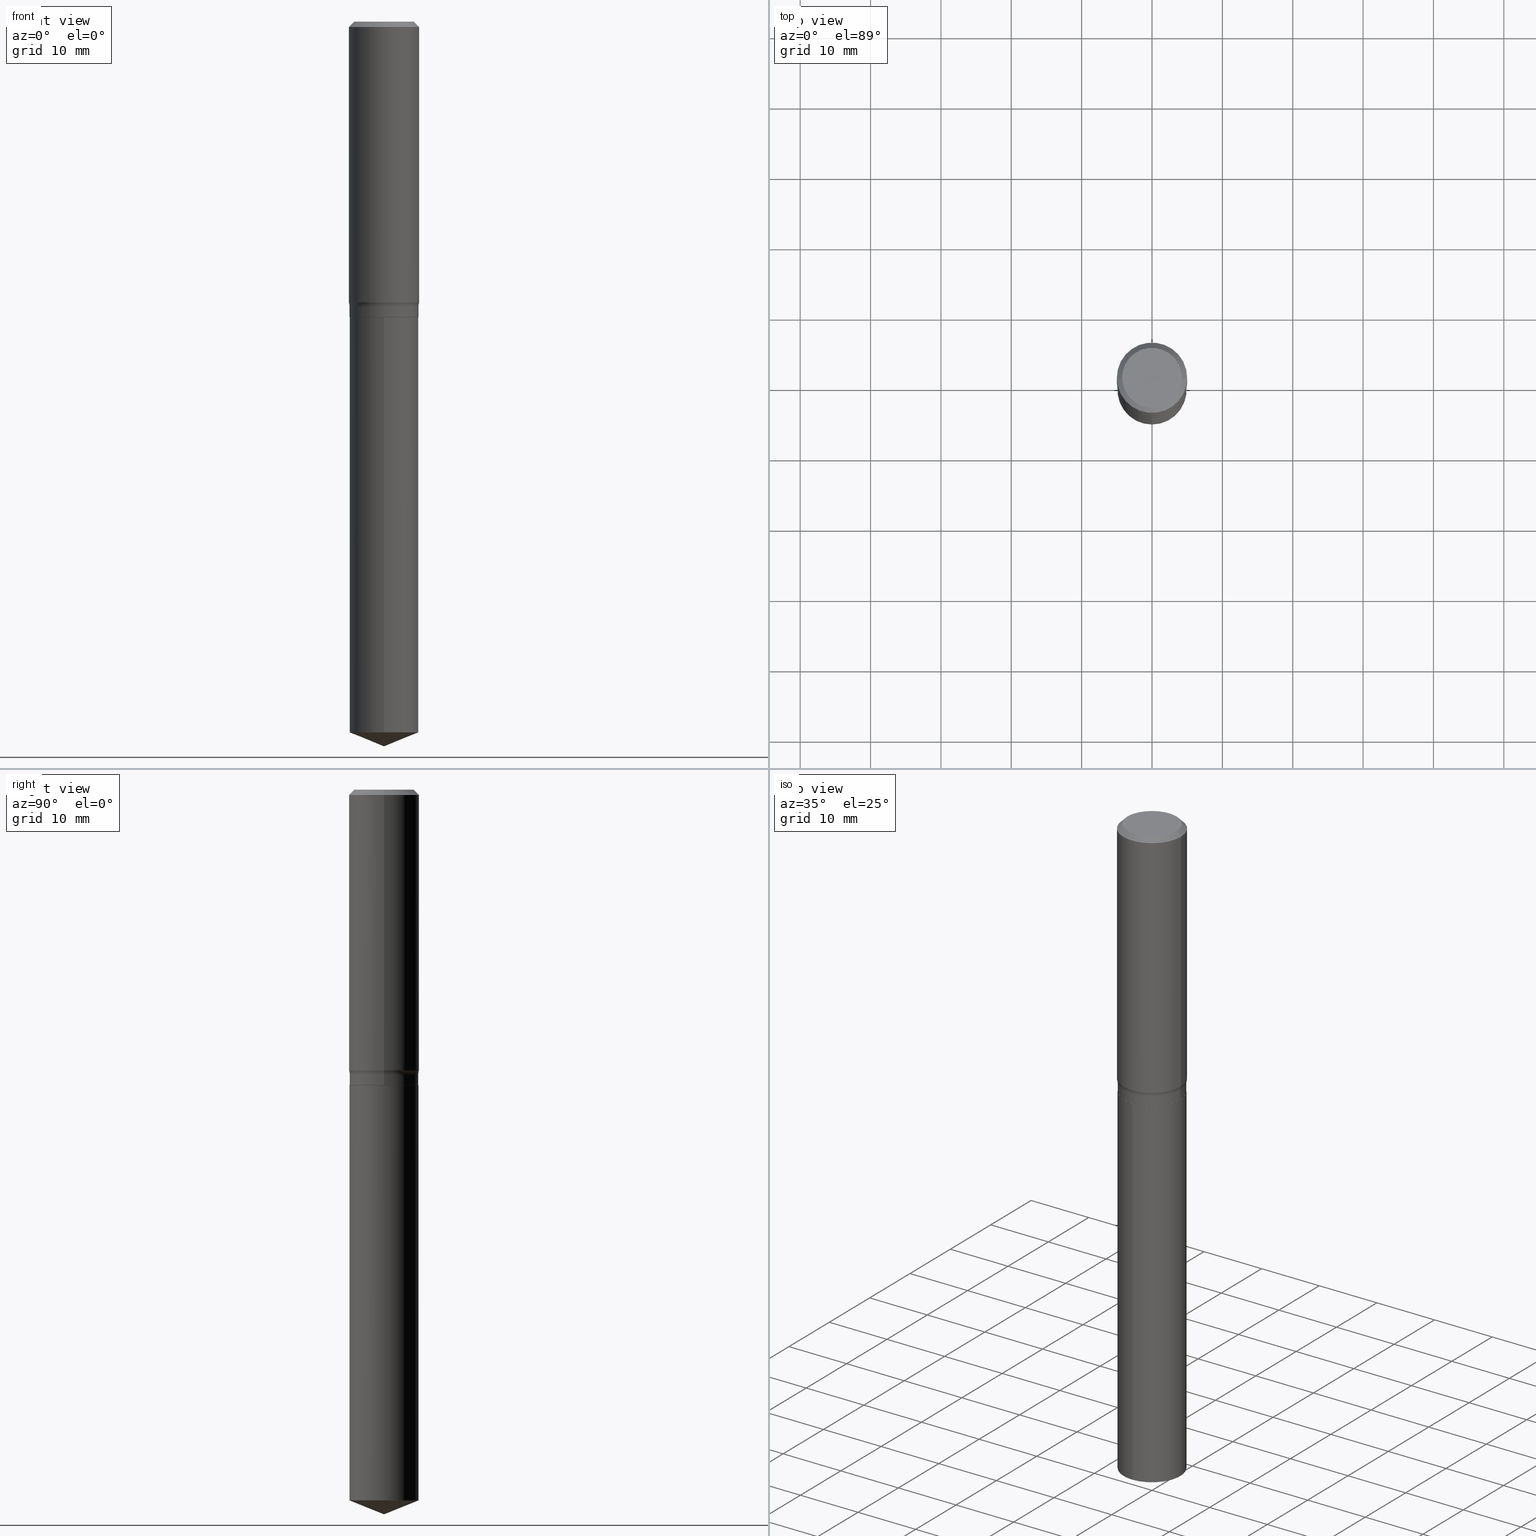
[diagram: canonical four-view strip — front | top / right | iso, engineering-drawing reading convention]
A machine part, canonical four-view strip (front | top / right | iso — engineering-drawing reading convention). The complete STEP part file that produces these views, byte-faithful:
ISO-10303-21;
HEADER;
FILE_DESCRIPTION (( 'STEP AP203' ),
    '1' );
FILE_NAME ('69291.STEP',
    '2024-04-19T17:41:43',
    ( '' ),
    ( '' ),
    'SwSTEP 2.0',
    'SolidWorks 2023',
    '' );
FILE_SCHEMA (( 'CONFIG_CONTROL_DESIGN' ));
ENDSEC;

DATA;
#1 = ORIENTED_EDGE ( 'NONE', *, *, #66, .T. ) ;
#2 = DIRECTION ( 'NONE',  ( -6.982962677686265133E-15, -1.000000000000000000, 2.832398127179122126E-15 ) ) ;
#3 = VERTEX_POINT ( 'NONE', #16 ) ;
#4 = DIRECTION ( 'NONE',  ( -2.445468806185136597E-29, 3.491481338843145583E-15, 1.000000000000000000 ) ) ;
#5 = CIRCLE ( 'NONE', #275, 0.1928999999999999881 ) ;
#6 = LOCAL_TIME ( 13, 41, 43.00000000000000000, #404 ) ;
#7 = EDGE_CURVE ( 'NONE', #482, #385, #347, .T. ) ;
#8 = CLOSED_SHELL ( 'NONE', ( #464, #405, #138, #387, #133 ) ) ;
#9 = CARTESIAN_POINT ( 'NONE',  ( -0.1928999999999999881, -4.299528757000033862E-15, -1.652899999999999814 ) ) ;
#10 = CARTESIAN_POINT ( 'NONE',  ( 0.000000000000000000, 0.000000000000000000, 0.000000000000000000 ) ) ;
#11 = TOROIDAL_SURFACE ( 'NONE', #474, 0.2708999999999999742, 0.07799999999999997213 ) ;
#12 = CARTESIAN_POINT ( 'NONE',  ( 3.840835966638190435E-29, -5.483695833354082254E-15, -1.570592909189378661 ) ) ;
#13 = DIRECTION ( 'NONE',  ( -2.445507172700810819E-29, 3.491426395809013811E-15, 1.000000000000000000 ) ) ;
#14 =( NAMED_UNIT ( * ) PLANE_ANGLE_UNIT ( ) SI_UNIT ( $, .RADIAN. ) );
#15 = CARTESIAN_POINT ( 'NONE',  ( 0.2708999999999999742, -7.460946472973909886E-15, -1.595099999999999518 ) ) ;
#16 = CARTESIAN_POINT ( 'NONE',  ( 0.1923999999999999877, -7.116337264830093249E-15, -1.653399999999999981 ) ) ;
#17 =( CONVERSION_BASED_UNIT ( 'INCH', #289 ) LENGTH_UNIT ( ) NAMED_UNIT ( #42 ) );
#18 = DIRECTION ( 'NONE',  ( -2.445468806185136597E-29, 3.491481338843145583E-15, 1.000000000000000000 ) ) ;
#19 = ADVANCED_FACE ( 'NONE', ( #243 ), #393, .T. ) ;
#20 = DIRECTION ( 'NONE',  ( 0.7071067811865453523, -7.319954787623248157E-15, -0.7071067811865496822 ) ) ;
#21 = CYLINDRICAL_SURFACE ( 'NONE', #329, 0.1928999999999999881 ) ;
#22 = CC_DESIGN_PERSON_AND_ORGANIZATION_ASSIGNMENT ( #338, #102, ( #348 ) ) ;
#23 = CARTESIAN_POINT ( 'NONE',  ( 4.043338124146503856E-29, -5.772815245643255193E-15, -1.653399999999999537 ) ) ;
#24 = CALENDAR_DATE ( 2024, 19, 4 ) ;
#25 = CARTESIAN_POINT ( 'NONE',  ( -5.008488096090108951E-47, 7.150793614331948590E-33, 2.048068690724054183E-18 ) ) ;
#26 = EDGE_LOOP ( 'NONE', ( #63, #369, #427, #101 ) ) ;
#27 = ORIENTED_EDGE ( 'NONE', *, *, #228, .F. ) ;
#28 = CARTESIAN_POINT ( 'NONE',  ( 3.900767292745910558E-29, -5.569261883588700777E-15, -1.595099999999999518 ) ) ;
#29 = CONICAL_SURFACE ( 'NONE', #379, 97.44436430772951496, 1.186823891356148852 ) ;
#30 = APPROVAL_DATE_TIME ( #413, #451 ) ;
#31 = CIRCLE ( 'NONE', #91, 0.1928999999999999881 ) ;
#32 = ORIENTED_EDGE ( 'NONE', *, *, #7, .T. ) ;
#33 = CARTESIAN_POINT ( 'NONE',  ( 7.220858017463212989E-31, -1.030947152326917102E-16, -0.02952750000000020636 ) ) ;
#34 = ORIENTED_EDGE ( 'NONE', *, *, #437, .T. ) ;
#35 = CYLINDRICAL_SURFACE ( 'NONE', #210, 0.1928999999999999881 ) ;
#36 = EDGE_LOOP ( 'NONE', ( #371, #339 ) ) ;
#37 = CC_DESIGN_APPROVAL ( #223, ( #74 ) ) ;
#38 = ORIENTED_EDGE ( 'NONE', *, *, #279, .F. ) ;
#39 = ADVANCED_FACE ( 'NONE', ( #208 ), #331, .F. ) ;
#40 = CARTESIAN_POINT ( 'NONE',  ( 4.043338124146504977E-29, -5.772815245643255982E-15, -1.653399999999999981 ) ) ;
#41 = AXIS2_PLACEMENT_3D ( 'NONE', #189, #457, #104 ) ;
#42 = DIMENSIONAL_EXPONENTS ( 1.000000000000000000, 0.000000000000000000, 0.000000000000000000, 0.000000000000000000, 0.000000000000000000, 0.000000000000000000, 0.000000000000000000 ) ;
#43 = CARTESIAN_POINT ( 'NONE',  ( -8.636334179874603903E-28, 1.232999072406469164E-13, 35.31507874015748172 ) ) ;
#44 = CARTESIAN_POINT ( 'NONE',  ( -8.636334179874603903E-28, 1.232999072406469164E-13, 35.31507874015748172 ) ) ;
#45 = CARTESIAN_POINT ( 'NONE',  ( 0.000000000000000000, 0.000000000000000000, 0.000000000000000000 ) ) ;
#46 = ORIENTED_EDGE ( 'NONE', *, *, #48, .F. ) ;
#47 = PRODUCT_DEFINITION_SHAPE ( 'NONE', 'NONE',  #360 ) ;
#48 = EDGE_CURVE ( 'NONE', #396, #330, #312, .T. ) ;
#49 = DIRECTION ( 'NONE',  ( -2.445507172700810819E-29, 3.491426395809013417E-15, 1.000000000000000000 ) ) ;
#50 = ORIENTED_EDGE ( 'NONE', *, *, #425, .T. ) ;
#51 = CARTESIAN_POINT ( 'NONE',  ( -0.1968500000000000250, 1.271501487869850120E-15, -0.02952750000000020636 ) ) ;
#52 = APPROVAL ( #313, 'UNSPECIFIED' ) ;
#53 = CARTESIAN_POINT ( 'NONE',  ( -0.1968500000000001082, 1.398703375343757985E-15, -9.682923725166787881E-30 ) ) ;
#54 = CARTESIAN_POINT ( 'NONE',  ( -1.347013500525640042E-15, -0.1929000000000057335, -1.653399999999999093 ) ) ;
#55 = APPLICATION_PROTOCOL_DEFINITION ( 'international standard', 'config_control_design', 1994, #202 ) ;
#56 = CARTESIAN_POINT ( 'NONE',  ( 1.370636937281330599E-15, 0.1928999999999942150, -1.653400000000000203 ) ) ;
#57 = EDGE_CURVE ( 'NONE', #468, #224, #438, .T. ) ;
#58 = DIRECTION ( 'NONE',  ( -0.7071067811865453523, 2.468850131082234184E-15, -0.7071067811865496822 ) ) ;
#59 = AXIS2_PLACEMENT_3D ( 'NONE', #43, #280, #435 ) ;
#60 = FACE_OUTER_BOUND ( 'NONE', #489, .T. ) ;
#61 = ORIENTED_EDGE ( 'NONE', *, *, #112, .T. ) ;
#62 = EDGE_LOOP ( 'NONE', ( #332, #1, #34, #157 ) ) ;
#63 = ORIENTED_EDGE ( 'NONE', *, *, #206, .T. ) ;
#64 = CIRCLE ( 'NONE', #121, 0.1673224999999999851 ) ;
#65 = APPROVAL_PERSON_ORGANIZATION ( #300, #451, #460 ) ;
#66 = EDGE_CURVE ( 'NONE', #184, #143, #309, .T. ) ;
#67 = CIRCLE ( 'NONE', #318, 0.07799999999999995826 ) ;
#68 = ORIENTED_EDGE ( 'NONE', *, *, #151, .T. ) ;
#69 = CC_DESIGN_PERSON_AND_ORGANIZATION_ASSIGNMENT ( #398, #247, ( #117 ) ) ;
#70 = ORIENTED_EDGE ( 'NONE', *, *, #72, .T. ) ;
#71 = ORIENTED_EDGE ( 'NONE', *, *, #265, .T. ) ;
#72 = EDGE_CURVE ( 'NONE', #400, #325, #416, .T. ) ;
#73 = CARTESIAN_POINT ( 'NONE',  ( -0.1968500000000000250, -1.394691898949628788E-15, -0.02952750000000020636 ) ) ;
#74 = PRODUCT_DEFINITION_FORMATION_WITH_SPECIFIED_SOURCE ( 'ANY', '', #117, .NOT_KNOWN. ) ;
#75 = FACE_OUTER_BOUND ( 'NONE', #442, .T. ) ;
#76 = FACE_OUTER_BOUND ( 'NONE', #403, .T. ) ;
#77 = DIRECTION ( 'NONE',  ( 1.000000000000000000, -6.982962677686269077E-15, 0.000000000000000000 ) ) ;
#78 = LINE ( 'NONE', #53, #197 ) ;
#79 = CARTESIAN_POINT ( 'NONE',  ( 0.1928999999999999881, -1.347013500525680866E-15, 9.406145000510359203E-30 ) ) ;
#80 = AXIS2_PLACEMENT_3D ( 'NONE', #40, #4, #266 ) ;
#81 = DIRECTION ( 'NONE',  ( 1.000000000000000000, -6.982962677686266711E-15, 4.876176775795935793E-29 ) ) ;
#82 = AXIS2_PLACEMENT_3D ( 'NONE', #164, #354, #282 ) ;
#83 = DATE_AND_TIME ( #439, #285 ) ;
#84 = CARTESIAN_POINT ( 'NONE',  ( 4.043338124146504977E-29, -5.772815245643255982E-15, -1.653399999999999981 ) ) ;
#85 = DIRECTION ( 'NONE',  ( -2.445468806185136597E-29, 3.491481338843145583E-15, 1.000000000000000000 ) ) ;
#86 = LINE ( 'NONE', #350, #107 ) ;
#87 = DIRECTION ( 'NONE',  ( -2.445507172700810819E-29, 3.491426395809013811E-15, 1.000000000000000000 ) ) ;
#88 = DIRECTION ( 'NONE',  ( 2.445468806185136597E-29, -3.491481338843145583E-15, -1.000000000000000000 ) ) ;
#89 = CIRCLE ( 'NONE', #454, 0.1968500000000001915 ) ;
#90 = COORDINATED_UNIVERSAL_TIME_OFFSET ( 5, 0, .BEHIND. ) ;
#91 = AXIS2_PLACEMENT_3D ( 'NONE', #28, #327, #137 ) ;
#92 = EDGE_LOOP ( 'NONE', ( #182, #283, #412 ) ) ;
#93 = DIRECTION ( 'NONE',  ( -2.445468806185136877E-29, 3.491481338843145188E-15, 1.000000000000000000 ) ) ;
#94 =( LENGTH_UNIT ( ) NAMED_UNIT ( * ) SI_UNIT ( $, .METRE. ) );
#95 = CARTESIAN_POINT ( 'NONE',  ( 7.220858017463212989E-31, -1.030947152326917102E-16, -0.02952750000000020636 ) ) ;
#96 = ORIENTED_EDGE ( 'NONE', *, *, #7, .F. ) ;
#97 = APPROVAL_STATUS ( 'not_yet_approved' ) ;
#98 = VERTEX_POINT ( 'NONE', #54 ) ;
#99 = VECTOR ( 'NONE', #58, 39.37007874015748143 ) ;
#100 = LOCAL_TIME ( 13, 41, 43.00000000000000000, #90 ) ;
#101 = ORIENTED_EDGE ( 'NONE', *, *, #179, .F. ) ;
#102 = PERSON_AND_ORGANIZATION_ROLE ( 'classification_officer' ) ;
#103 = ADVANCED_FACE ( 'NONE', ( #119 ), #11, .F. ) ;
#104 = DIRECTION ( 'NONE',  ( 1.000000000000000000, -6.982962677686267499E-15, 4.876176775795935793E-29 ) ) ;
#105 = ORIENTED_EDGE ( 'NONE', *, *, #305, .F. ) ;
#106 = ADVANCED_FACE ( 'NONE', ( #434 ), #342, .T. ) ;
#107 = VECTOR ( 'NONE', #211, 39.37007874015748143 ) ;
#108 = AXIS2_PLACEMENT_3D ( 'NONE', #167, #87, #471 ) ;
#109 = CYLINDRICAL_SURFACE ( 'NONE', #41, 0.1928999999999999881 ) ;
#110 = ADVANCED_FACE ( 'NONE', ( #205 ), #478, .T. ) ;
#111 = ADVANCED_BREP_SHAPE_REPRESENTATION ( '69291', ( #490, #320, #82 ), #475 ) ;
#112 = EDGE_CURVE ( 'NONE', #301, #144, #67, .T. ) ;
#113 = CIRCLE ( 'NONE', #368, 0.1968500000000000250 ) ;
#114 = CARTESIAN_POINT ( 'NONE',  ( 9.916532697805385385E-29, -1.415773403500555029E-14, -4.054999999999999716 ) ) ;
#115 = DIRECTION ( 'NONE',  ( -2.445468806185136597E-29, 3.491481338843145583E-15, 1.000000000000000000 ) ) ;
#116 = ORIENTED_EDGE ( 'NONE', *, *, #391, .T. ) ;
#117 = PRODUCT ( '69291', '69291', '', ( #321 ) ) ;
#118 = CARTESIAN_POINT ( 'NONE',  ( 7.220858017463212989E-31, -1.030947152326917102E-16, -0.02952750000000020636 ) ) ;
#119 = FACE_OUTER_BOUND ( 'NONE', #408, .T. ) ;
#120 = DIRECTION ( 'NONE',  ( -2.445507172700810819E-29, 3.491426395809013811E-15, 1.000000000000000000 ) ) ;
#121 = AXIS2_PLACEMENT_3D ( 'NONE', #472, #115, #433 ) ;
#122 = CARTESIAN_POINT ( 'NONE',  ( 4.042115389743411055E-29, -5.771069504973833690E-15, -1.652899999999999814 ) ) ;
#123 = CC_DESIGN_SECURITY_CLASSIFICATION ( #348, ( #74 ) ) ;
#124 = DIRECTION ( 'NONE',  ( -0.7071067811864267805, 7.493145998869918709E-15, 0.7071067811866682540 ) ) ;
#125 = DIRECTION ( 'NONE',  ( -6.982962677686265133E-15, -1.000000000000000000, 2.832398127179122126E-15 ) ) ;
#126 = DIRECTION ( 'NONE',  ( -2.445468806185136877E-29, 3.491481338843145188E-15, 1.000000000000000000 ) ) ;
#127 = CARTESIAN_POINT ( 'NONE',  ( -0.1923999999999999877, -4.405731022040823903E-15, -1.653399999999999981 ) ) ;
#128 = EDGE_LOOP ( 'NONE', ( #132, #299, #291, #68 ) ) ;
#129 = LOCAL_TIME ( 13, 41, 43.00000000000000000, #485 ) ;
#130 = CIRCLE ( 'NONE', #199, 0.1968500000000000250 ) ;
#131 = DIRECTION ( 'NONE',  ( -2.445468806185136597E-29, 3.491481338843145583E-15, 1.000000000000000000 ) ) ;
#132 = ORIENTED_EDGE ( 'NONE', *, *, #112, .F. ) ;
#133 = ADVANCED_FACE ( 'NONE', ( #359 ), #235, .F. ) ;
#134 = DIRECTION ( 'NONE',  ( -2.438088387897960049E-29, 3.491481338843145188E-15, 1.000000000000000000 ) ) ;
#135 = PERSON_AND_ORGANIZATION ( #153, #430 ) ;
#136 = ORIENTED_EDGE ( 'NONE', *, *, #425, .F. ) ;
#137 = DIRECTION ( 'NONE',  ( 1.000000000000000000, -6.982962677686269077E-15, 0.000000000000000000 ) ) ;
#138 = ADVANCED_FACE ( 'NONE', ( #383 ), #29, .T. ) ;
#139 = APPROVAL_DATE_TIME ( #488, #223 ) ;
#140 = PLANE ( 'NONE',  #267 ) ;
#141 = ORIENTED_EDGE ( 'NONE', *, *, #261, .F. ) ;
#142 = ADVANCED_FACE ( 'NONE', ( #428 ), #389, .F. ) ;
#143 = VERTEX_POINT ( 'NONE', #337 ) ;
#144 = VERTEX_POINT ( 'NONE', #173 ) ;
#145 = CALENDAR_DATE ( 2024, 19, 4 ) ;
#146 = CC_DESIGN_PERSON_AND_ORGANIZATION_ASSIGNMENT ( #135, #296, ( #74 ) ) ;
#147 = APPLICATION_CONTEXT ( 'configuration controlled 3d designs of mechanical parts and assemblies' ) ;
#148 = VECTOR ( 'NONE', #49, 39.37007874015748143 ) ;
#149 = VECTOR ( 'NONE', #308, 39.37007874015748854 ) ;
#150 = CIRCLE ( 'NONE', #432, 0.07799999999999995826 ) ;
#151 = EDGE_CURVE ( 'NONE', #330, #144, #31, .T. ) ;
#152 = CARTESIAN_POINT ( 'NONE',  ( 3.840835966638190435E-29, -5.483695833354082254E-15, -1.570592909189378661 ) ) ;
#153 = PERSON ( 'UNSPECIFIED', 'UNSPECIFIED', 'UNSPECIFIED', ('UNSPECIFIED'), ('UNSPECIFIED'), ('UNSPECIFIED') ) ;
#154 = AXIS2_PLACEMENT_3D ( 'NONE', #198, #194, #237 ) ;
#155 = CARTESIAN_POINT ( 'NONE',  ( 9.916404714907756114E-29, -1.415791572063081844E-14, -4.054999999999999716 ) ) ;
#156 = CIRCLE ( 'NONE', #349, 0.1923999999999999877 ) ;
#157 = ORIENTED_EDGE ( 'NONE', *, *, #57, .F. ) ;
#158 = DIRECTION ( 'NONE',  ( -2.445468806185136597E-29, 3.491481338843145583E-15, 1.000000000000000000 ) ) ;
#159 = DIRECTION ( 'NONE',  ( -6.474490251793188884E-15, -0.9271838545667878684, 0.3746065934159108490 ) ) ;
#160 = DIRECTION ( 'NONE',  ( 1.000000000000000000, -6.982962677686267499E-15, 4.876176775795935793E-29 ) ) ;
#161 = APPLICATION_PROTOCOL_DEFINITION ( 'international standard', 'config_control_design', 1994, #147 ) ;
#162 = CARTESIAN_POINT ( 'NONE',  ( 4.043338124146503856E-29, -5.772815245643255193E-15, -1.653399999999999537 ) ) ;
#163 = CARTESIAN_POINT ( 'NONE',  ( 0.1968500000000000250, -1.453583746094017706E-15, -0.02952750000000020636 ) ) ;
#164 = CARTESIAN_POINT ( 'NONE',  ( 0.000000000000000000, 0.000000000000000000, 0.000000000000000000 ) ) ;
#165 = CYLINDRICAL_SURFACE ( 'NONE', #219, 0.1968500000000001082 ) ;
#166 = CC_DESIGN_APPROVAL ( #451, ( #348 ) ) ;
#167 = CARTESIAN_POINT ( 'NONE',  ( 9.725873491592949030E-29, -1.388571476951150390E-14, -3.977063341036398914 ) ) ;
#168 = AXIS2_PLACEMENT_3D ( 'NONE', #23, #169, #233 ) ;
#169 = DIRECTION ( 'NONE',  ( 2.445507172700810538E-29, -3.491426395809013417E-15, -1.000000000000000000 ) ) ;
#170 = CARTESIAN_POINT ( 'NONE',  ( 9.916531585301787226E-29, -1.415773403500555029E-14, -4.054999999999999716 ) ) ;
#171 = DIRECTION ( 'NONE',  ( 2.438088387897960049E-29, -3.491481338843145188E-15, -1.000000000000000000 ) ) ;
#172 = ORIENTED_EDGE ( 'NONE', *, *, #310, .F. ) ;
#173 = CARTESIAN_POINT ( 'NONE',  ( -0.1928999999999999881, -4.299528757000033862E-15, -1.595099999999999518 ) ) ;
#174 = EDGE_CURVE ( 'NONE', #385, #144, #288, .T. ) ;
#175 = EDGE_LOOP ( 'NONE', ( #221, #322, #294, #38 ) ) ;
#176 = CARTESIAN_POINT ( 'NONE',  ( 0.1673224999999999851, -1.300749711163072397E-15, 4.096137381456741925E-18 ) ) ;
#177 = AXIS2_PLACEMENT_3D ( 'NONE', #355, #18, #77 ) ;
#178 = CIRCLE ( 'NONE', #287, 0.1968500000000001915 ) ;
#179 = EDGE_CURVE ( 'NONE', #363, #143, #295, .T. ) ;
#180 = DIRECTION ( 'NONE',  ( -2.445468806185136597E-29, 3.491481338843145583E-15, 1.000000000000000000 ) ) ;
#181 = ORIENTED_EDGE ( 'NONE', *, *, #272, .T. ) ;
#182 = ORIENTED_EDGE ( 'NONE', *, *, #418, .F. ) ;
#183 = CARTESIAN_POINT ( 'NONE',  ( 4.043338124146503856E-29, -5.772815245643255193E-15, -1.653399999999999537 ) ) ;
#184 = VERTEX_POINT ( 'NONE', #176 ) ;
#185 = APPROVAL_PERSON_ORGANIZATION ( #390, #223, #373 ) ;
#186 = CC_DESIGN_DATE_AND_TIME_ASSIGNMENT ( #83, #240, ( #360 ) ) ;
#187 = COORDINATED_UNIVERSAL_TIME_OFFSET ( 5, 0, .BEHIND. ) ;
#188 = ORIENTED_EDGE ( 'NONE', *, *, #231, .T. ) ;
#189 = CARTESIAN_POINT ( 'NONE',  ( 0.000000000000000000, 0.000000000000000000, 0.000000000000000000 ) ) ;
#190 = DIRECTION ( 'NONE',  ( 1.000000000000000000, -6.982962677686266711E-15, 0.000000000000000000 ) ) ;
#191 = CIRCLE ( 'NONE', #154, 0.1673224999999999851 ) ;
#192 = AXIS2_PLACEMENT_3D ( 'NONE', #10, #158, #278 ) ;
#193 = EDGE_CURVE ( 'NONE', #482, #3, #441, .T. ) ;
#194 = DIRECTION ( 'NONE',  ( -2.445468806185136597E-29, 3.491481338843145583E-15, 1.000000000000000000 ) ) ;
#195 = ORIENTED_EDGE ( 'NONE', *, *, #251, .T. ) ;
#196 = ORIENTED_EDGE ( 'NONE', *, *, #417, .F. ) ;
#197 = VECTOR ( 'NONE', #423, 39.37007874015748143 ) ;
#198 = CARTESIAN_POINT ( 'NONE',  ( -1.001697619218021790E-46, 1.430158722866389718E-32, 4.096137381448108366E-18 ) ) ;
#199 = AXIS2_PLACEMENT_3D ( 'NONE', #118, #358, #424 ) ;
#200 = DIRECTION ( 'NONE',  ( 1.000000000000000000, -6.982962677686265133E-15, 4.883557194083111780E-29 ) ) ;
#201 = CC_DESIGN_DATE_AND_TIME_ASSIGNMENT ( #366, #452, ( #348 ) ) ;
#202 = APPLICATION_CONTEXT ( 'configuration controlled 3d designs of mechanical parts and assemblies' ) ;
#203 = DIRECTION ( 'NONE',  ( -2.445507172700810819E-29, 3.491426395809013811E-15, 1.000000000000000000 ) ) ;
#204 = ORIENTED_EDGE ( 'NONE', *, *, #251, .F. ) ;
#205 = FACE_OUTER_BOUND ( 'NONE', #216, .T. ) ;
#206 = EDGE_CURVE ( 'NONE', #363, #301, #178, .T. ) ;
#207 = DIRECTION ( 'NONE',  ( -6.982962677686265133E-15, -1.000000000000000000, 2.832398127179122126E-15 ) ) ;
#208 = FACE_OUTER_BOUND ( 'NONE', #128, .T. ) ;
#209 = COORDINATED_UNIVERSAL_TIME_OFFSET ( 5, 0, .BEHIND. ) ;
#210 = AXIS2_PLACEMENT_3D ( 'NONE', #183, #259, #2 ) ;
#211 = DIRECTION ( 'NONE',  ( 0.7071067811864267805, -2.468850131080992517E-15, 0.7071067811866682540 ) ) ;
#212 = DIRECTION ( 'NONE',  ( -1.000000000000000000, 7.105427357601001859E-15, 0.000000000000000000 ) ) ;
#213 = PERSON_AND_ORGANIZATION ( #153, #430 ) ;
#214 = ORIENTED_EDGE ( 'NONE', *, *, #481, .T. ) ;
#215 = CARTESIAN_POINT ( 'NONE',  ( 9.725873491592949030E-29, -1.388571476951150390E-14, -3.977063341036398914 ) ) ;
#216 = EDGE_LOOP ( 'NONE', ( #376, #116, #401, #136 ) ) ;
#217 = DIRECTION ( 'NONE',  ( 1.000000000000000000, -6.982962677686265922E-15, 4.876176775795935793E-29 ) ) ;
#218 = ORIENTED_EDGE ( 'NONE', *, *, #261, .T. ) ;
#219 = AXIS2_PLACEMENT_3D ( 'NONE', #45, #467, #81 ) ;
#220 = CC_DESIGN_APPROVAL ( #52, ( #360 ) ) ;
#221 = ORIENTED_EDGE ( 'NONE', *, *, #378, .F. ) ;
#222 = ORIENTED_EDGE ( 'NONE', *, *, #72, .F. ) ;
#223 = APPROVAL ( #375, 'UNSPECIFIED' ) ;
#224 = VERTEX_POINT ( 'NONE', #73 ) ;
#225 = CARTESIAN_POINT ( 'NONE',  ( 4.043338124146504977E-29, -5.772815245643255982E-15, -1.653399999999999981 ) ) ;
#226 = VECTOR ( 'NONE', #93, 39.37007874015748143 ) ;
#227 = DIRECTION ( 'NONE',  ( -2.445468806185136597E-29, 3.491481338843145583E-15, 1.000000000000000000 ) ) ;
#228 = EDGE_CURVE ( 'NONE', #98, #414, #367, .T. ) ;
#229 = DIRECTION ( 'NONE',  ( -2.445468806185136597E-29, 3.491481338843145583E-15, 1.000000000000000000 ) ) ;
#230 = ADVANCED_FACE ( 'NONE', ( #75 ), #304, .T. ) ;
#231 = EDGE_CURVE ( 'NONE', #400, #414, #341, .T. ) ;
#232 = CARTESIAN_POINT ( 'NONE',  ( -1.347013500525583441E-15, -0.1929000000000139214, -3.977063341036398469 ) ) ;
#233 = DIRECTION ( 'NONE',  ( 6.982962677686265922E-15, 1.000000000000000000, -3.491426395809013417E-15 ) ) ;
#234 = CARTESIAN_POINT ( 'NONE',  ( 4.043338124146503856E-29, -5.772815245643255193E-15, -1.653399999999999537 ) ) ;
#235 = PLANE ( 'NONE',  #168 ) ;
#236 = AXIS2_PLACEMENT_3D ( 'NONE', #257, #134, #217 ) ;
#237 = DIRECTION ( 'NONE',  ( 1.000000000000000000, -6.982962677686267499E-15, 4.876294436782262290E-29 ) ) ;
#238 = AXIS2_PLACEMENT_3D ( 'NONE', #246, #351, #160 ) ;
#239 = CARTESIAN_POINT ( 'NONE',  ( 7.220858017463212989E-31, -1.030947152326917102E-16, -0.02952750000000020636 ) ) ;
#240 = DATE_TIME_ROLE ( 'creation_date' ) ;
#241 = ADVANCED_FACE ( 'NONE', ( #352 ), #165, .T. ) ;
#242 = CARTESIAN_POINT ( 'NONE',  ( 0.1928999999999999881, -6.916275384114381840E-15, -1.595099999999999518 ) ) ;
#243 = FACE_OUTER_BOUND ( 'NONE', #26, .T. ) ;
#244 = APPROVAL_ROLE ( '' ) ;
#245 = DIRECTION ( 'NONE',  ( 1.000000000000000000, -6.982962677686269077E-15, 0.000000000000000000 ) ) ;
#246 = CARTESIAN_POINT ( 'NONE',  ( 0.000000000000000000, 0.000000000000000000, 0.000000000000000000 ) ) ;
#247 = PERSON_AND_ORGANIZATION_ROLE ( 'design_owner' ) ;
#248 = LOCAL_TIME ( 13, 41, 43.00000000000000000, #187 ) ;
#249 = CARTESIAN_POINT ( 'NONE',  ( -0.1673224999999999851, 1.219954130253505263E-15, 4.096137381439757534E-18 ) ) ;
#250 = ORIENTED_EDGE ( 'NONE', *, *, #411, .T. ) ;
#251 = EDGE_CURVE ( 'NONE', #325, #98, #277, .T. ) ;
#252 = ORIENTED_EDGE ( 'NONE', *, *, #231, .F. ) ;
#253 = ORIENTED_EDGE ( 'NONE', *, *, #174, .T. ) ;
#254 = AXIS2_PLACEMENT_3D ( 'NONE', #479, #356, #200 ) ;
#255 = APPROVAL_PERSON_ORGANIZATION ( #213, #52, #244 ) ;
#256 = ORIENTED_EDGE ( 'NONE', *, *, #272, .F. ) ;
#257 = CARTESIAN_POINT ( 'NONE',  ( 2.403997817846614662E-29, -8.120443869720435549E-15, -1.653399999999999981 ) ) ;
#258 = CALENDAR_DATE ( 2024, 19, 4 ) ;
#259 = DIRECTION ( 'NONE',  ( -2.445507172700810819E-29, 3.491426395809013811E-15, 1.000000000000000000 ) ) ;
#260 = EDGE_LOOP ( 'NONE', ( #458, #256, #353, #473 ) ) ;
#261 = EDGE_CURVE ( 'NONE', #414, #98, #5, .T. ) ;
#262 = VECTOR ( 'NONE', #159, 39.37007874015748143 ) ;
#263 = VECTOR ( 'NONE', #124, 39.37007874015748143 ) ;
#264 = CARTESIAN_POINT ( 'NONE',  ( 1.370636937281273406E-15, 0.1928999999999942150, -1.653400000000000203 ) ) ;
#265 = EDGE_CURVE ( 'NONE', #3, #482, #156, .T. ) ;
#266 = DIRECTION ( 'NONE',  ( 1.000000000000000000, -6.982962677686266711E-15, 0.000000000000000000 ) ) ;
#267 = AXIS2_PLACEMENT_3D ( 'NONE', #25, #171, #324 ) ;
#268 = DIRECTION ( 'NONE',  ( 1.000000000000000000, -6.982962677686266711E-15, 0.000000000000000000 ) ) ;
#269 = DIRECTION ( 'NONE',  ( -2.445507172700810819E-29, 3.491426395809013811E-15, 1.000000000000000000 ) ) ;
#270 = EDGE_LOOP ( 'NONE', ( #459, #253, #374, #46 ) ) ;
#271 = FACE_OUTER_BOUND ( 'NONE', #284, .T. ) ;
#272 = EDGE_CURVE ( 'NONE', #468, #184, #64, .T. ) ;
#273 = DIRECTION ( 'NONE',  ( -6.982962677686266711E-15, -1.000000000000000000, 3.498761904101788509E-15 ) ) ;
#274 = DATE_AND_TIME ( #24, #100 ) ;
#275 = AXIS2_PLACEMENT_3D ( 'NONE', #162, #203, #125 ) ;
#276 = CIRCLE ( 'NONE', #386, 0.1928999999999999881 ) ;
#277 = LINE ( 'NONE', #314, #429 ) ;
#278 = DIRECTION ( 'NONE',  ( 1.000000000000000000, -6.982962677686266711E-15, 4.876176775795935793E-29 ) ) ;
#279 = EDGE_CURVE ( 'NONE', #224, #143, #130, .T. ) ;
#280 = DIRECTION ( 'NONE',  ( -2.445507172700810819E-29, 3.491426395809013811E-15, 1.000000000000000000 ) ) ;
#281 = DIRECTION ( 'NONE',  ( 1.000000000000000000, -6.982962677686265133E-15, 4.883557194083111780E-29 ) ) ;
#282 = DIRECTION ( 'NONE',  ( 1.000000000000000000, 0.000000000000000000, 0.000000000000000000 ) ) ;
#283 = ORIENTED_EDGE ( 'NONE', *, *, #335, .T. ) ;
#284 = EDGE_LOOP ( 'NONE', ( #252, #70, #195, #141 ) ) ;
#285 = LOCAL_TIME ( 13, 41, 43.00000000000000000, #209 ) ;
#286 = EDGE_LOOP ( 'NONE', ( #181, #250 ) ) ;
#287 = AXIS2_PLACEMENT_3D ( 'NONE', #152, #227, #415 ) ;
#288 = LINE ( 'NONE', #410, #226 ) ;
#289 = LENGTH_MEASURE_WITH_UNIT ( LENGTH_MEASURE( 0.02539999999999999897 ), #94 );
#290 = DIRECTION ( 'NONE',  ( 1.000000000000000000, -6.982962677686265922E-15, 0.000000000000000000 ) ) ;
#291 = ORIENTED_EDGE ( 'NONE', *, *, #305, .T. ) ;
#292 = SECURITY_CLASSIFICATION_LEVEL ( 'unclassified' ) ;
#293 = DIRECTION ( 'NONE',  ( 1.000000000000000000, -6.982962677686266711E-15, 0.000000000000000000 ) ) ;
#294 = ORIENTED_EDGE ( 'NONE', *, *, #179, .T. ) ;
#295 = LINE ( 'NONE', #372, #303 ) ;
#296 = PERSON_AND_ORGANIZATION_ROLE ( 'design_supplier' ) ;
#297 = ORIENTED_EDGE ( 'NONE', *, *, #418, .T. ) ;
#298 = CALENDAR_DATE ( 2024, 19, 4 ) ;
#299 = ORIENTED_EDGE ( 'NONE', *, *, #206, .F. ) ;
#300 = PERSON_AND_ORGANIZATION ( #153, #430 ) ;
#301 = VERTEX_POINT ( 'NONE', #317 ) ;
#302 = DIRECTION ( 'NONE',  ( -2.445507172700810819E-29, 3.491426395809013811E-15, 1.000000000000000000 ) ) ;
#303 = VECTOR ( 'NONE', #365, 39.37007874015748143 ) ;
#304 = CONICAL_SURFACE ( 'NONE', #370, 0.1923999999999999877, 0.7853981633972775267 ) ;
#305 = EDGE_CURVE ( 'NONE', #363, #330, #150, .T. ) ;
#306 = DIRECTION ( 'NONE',  ( -2.445507172700810819E-29, 3.491426395809013417E-15, 1.000000000000000000 ) ) ;
#307 = CONICAL_SURFACE ( 'NONE', #59, 97.44436430772951496, 1.186823891356148852 ) ;
#308 = DIRECTION ( 'NONE',  ( 6.588037525764800757E-15, 0.9271838545667904219, 0.3746065934159043542 ) ) ;
#309 = LINE ( 'NONE', #163, #409 ) ;
#310 = EDGE_CURVE ( 'NONE', #396, #385, #406, .T. ) ;
#311 = DIRECTION ( 'NONE',  ( -2.445468806185136597E-29, 3.491481338843145583E-15, 1.000000000000000000 ) ) ;
#312 = LINE ( 'NONE', #79, #316 ) ;
#313 = APPROVAL_STATUS ( 'not_yet_approved' ) ;
#314 = CARTESIAN_POINT ( 'NONE',  ( -1.347013500525640042E-15, -0.1929000000000057335, -1.653399999999999093 ) ) ;
#315 = DIRECTION ( 'NONE',  ( 7.105427357601001859E-15, 1.000000000000000000, -3.491481338843145583E-15 ) ) ;
#316 = VECTOR ( 'NONE', #126, 39.37007874015748143 ) ;
#317 = CARTESIAN_POINT ( 'NONE',  ( -0.1968500000000001915, -4.084992458010324467E-15, -1.570592909189378661 ) ) ;
#318 = AXIS2_PLACEMENT_3D ( 'NONE', #397, #315, #212 ) ;
#319 = DIRECTION ( 'NONE',  ( -1.000000000000000000, 6.982962677686265922E-15, 0.000000000000000000 ) ) ;
#320 = MANIFOLD_SOLID_BREP ( 'Body-Move/Copy2[2]', #381 ) ;
#321 = MECHANICAL_CONTEXT ( 'NONE', #147, 'mechanical' ) ;
#322 = ORIENTED_EDGE ( 'NONE', *, *, #422, .T. ) ;
#323 = CC_DESIGN_PERSON_AND_ORGANIZATION_ASSIGNMENT ( #491, #456, ( #74 ) ) ;
#324 = DIRECTION ( 'NONE',  ( -1.000000000000000000, 6.982962677686265922E-15, -4.876176775795935793E-29 ) ) ;
#325 = VERTEX_POINT ( 'NONE', #232 ) ;
#326 = UNCERTAINTY_MEASURE_WITH_UNIT (LENGTH_MEASURE( 1.000000000000000082E-05 ), #17, 'distance_accuracy_value', 'NONE');
#327 = DIRECTION ( 'NONE',  ( -2.445468806185136597E-29, 3.491481338843145583E-15, 1.000000000000000000 ) ) ;
#328 =( NAMED_UNIT ( * ) SI_UNIT ( $, .STERADIAN. ) SOLID_ANGLE_UNIT ( ) );
#329 = AXIS2_PLACEMENT_3D ( 'NONE', #234, #269, #207 ) ;
#330 = VERTEX_POINT ( 'NONE', #242 ) ;
#331 = TOROIDAL_SURFACE ( 'NONE', #254, 0.2708999999999999742, 0.07799999999999997213 ) ;
#332 = ORIENTED_EDGE ( 'NONE', *, *, #411, .F. ) ;
#333 = FACE_OUTER_BOUND ( 'NONE', #286, .T. ) ;
#334 = ORIENTED_EDGE ( 'NONE', *, *, #193, .T. ) ;
#335 = EDGE_CURVE ( 'NONE', #484, #400, #392, .T. ) ;
#336 = EDGE_LOOP ( 'NONE', ( #487, #218 ) ) ;
#337 = CARTESIAN_POINT ( 'NONE',  ( 0.1968500000000000250, -1.477690918335233294E-15, -0.02952750000000020636 ) ) ;
#338 = PERSON_AND_ORGANIZATION ( #153, #430 ) ;
#339 = ORIENTED_EDGE ( 'NONE', *, *, #193, .F. ) ;
#340 = CARTESIAN_POINT ( 'NONE',  ( 4.043338124146503856E-29, -5.772815245643255193E-15, -1.653399999999999537 ) ) ;
#341 = LINE ( 'NONE', #264, #148 ) ;
#342 = CONICAL_SURFACE ( 'NONE', #476, 0.1968500000000000250, 0.7853981633974452814 ) ;
#343 = CIRCLE ( 'NONE', #380, 0.1928999999999999881 ) ;
#344 = CC_DESIGN_PERSON_AND_ORGANIZATION_ASSIGNMENT ( #431, #480, ( #360 ) ) ;
#345 = LINE ( 'NONE', #155, #262 ) ;
#346 = ORIENTED_EDGE ( 'NONE', *, *, #417, .T. ) ;
#347 = LINE ( 'NONE', #127, #263 ) ;
#348 = SECURITY_CLASSIFICATION ( '', '', #292 ) ;
#349 = AXIS2_PLACEMENT_3D ( 'NONE', #84, #470, #268 ) ;
#350 = CARTESIAN_POINT ( 'NONE',  ( 0.1923999999999999877, -7.116337264830093249E-15, -1.653399999999999981 ) ) ;
#351 = DIRECTION ( 'NONE',  ( -2.445468806185136597E-29, 3.491481338843145583E-15, 1.000000000000000000 ) ) ;
#352 = FACE_OUTER_BOUND ( 'NONE', #175, .T. ) ;
#353 = ORIENTED_EDGE ( 'NONE', *, *, #57, .T. ) ;
#354 = DIRECTION ( 'NONE',  ( 0.000000000000000000, 0.000000000000000000, 1.000000000000000000 ) ) ;
#355 = CARTESIAN_POINT ( 'NONE',  ( 4.042115389743411055E-29, -5.771069504973833690E-15, -1.652899999999999814 ) ) ;
#356 = DIRECTION ( 'NONE',  ( -2.445468806185136597E-29, 3.491481338843145583E-15, 1.000000000000000000 ) ) ;
#357 = CIRCLE ( 'NONE', #177, 0.1928999999999999881 ) ;
#358 = DIRECTION ( 'NONE',  ( -2.445468806185136597E-29, 3.491481338843145583E-15, 1.000000000000000000 ) ) ;
#359 = FACE_OUTER_BOUND ( 'NONE', #336, .T. ) ;
#360 = PRODUCT_DEFINITION ( 'UNKNOWN', '', #74, #444 ) ;
#361 = DIRECTION ( 'NONE',  ( -6.982962677686265133E-15, -1.000000000000000000, 2.832398127179122126E-15 ) ) ;
#362 = CARTESIAN_POINT ( 'NONE',  ( 4.043338124146504977E-29, -5.772815245643255982E-15, -1.653399999999999981 ) ) ;
#363 = VERTEX_POINT ( 'NONE', #395 ) ;
#364 = ORIENTED_EDGE ( 'NONE', *, *, #391, .F. ) ;
#365 = DIRECTION ( 'NONE',  ( -2.445468806185136877E-29, 3.491481338843145188E-15, 1.000000000000000000 ) ) ;
#366 = DATE_AND_TIME ( #258, #6 ) ;
#367 = CIRCLE ( 'NONE', #461, 0.1928999999999999881 ) ;
#368 = AXIS2_PLACEMENT_3D ( 'NONE', #33, #131, #290 ) ;
#369 = ORIENTED_EDGE ( 'NONE', *, *, #378, .T. ) ;
#370 = AXIS2_PLACEMENT_3D ( 'NONE', #225, #229, #190 ) ;
#371 = ORIENTED_EDGE ( 'NONE', *, *, #265, .F. ) ;
#372 = CARTESIAN_POINT ( 'NONE',  ( 0.1968500000000001082, -1.374596203102542397E-15, 9.598753983154305062E-30 ) ) ;
#373 = APPROVAL_ROLE ( '' ) ;
#374 = ORIENTED_EDGE ( 'NONE', *, *, #151, .F. ) ;
#375 = APPROVAL_STATUS ( 'not_yet_approved' ) ;
#376 = ORIENTED_EDGE ( 'NONE', *, *, #174, .F. ) ;
#377 = SHAPE_DEFINITION_REPRESENTATION ( #47, #111 ) ;
#378 = EDGE_CURVE ( 'NONE', #301, #224, #78, .T. ) ;
#379 = AXIS2_PLACEMENT_3D ( 'NONE', #44, #13, #273 ) ;
#380 = AXIS2_PLACEMENT_3D ( 'NONE', #215, #120, #361 ) ;
#381 = CLOSED_SHELL ( 'NONE', ( #448, #443, #19, #103, #463, #110, #39, #241, #106, #453, #142, #230 ) ) ;
#382 = CARTESIAN_POINT ( 'NONE',  ( 1.370636937281330401E-15, 0.1928999999999861104, -3.977063341036399802 ) ) ;
#383 = FACE_OUTER_BOUND ( 'NONE', #455, .T. ) ;
#384 = FACE_OUTER_BOUND ( 'NONE', #92, .T. ) ;
#385 = VERTEX_POINT ( 'NONE', #9 ) ;
#386 = AXIS2_PLACEMENT_3D ( 'NONE', #483, #180, #399 ) ;
#387 = ADVANCED_FACE ( 'NONE', ( #271 ), #21, .T. ) ;
#388 = DIRECTION ( 'NONE',  ( 1.000000000000000000, -6.982962677686261977E-15, 0.000000000000000000 ) ) ;
#389 = PLANE ( 'NONE',  #236 ) ;
#390 = PERSON_AND_ORGANIZATION ( #153, #430 ) ;
#391 = EDGE_CURVE ( 'NONE', #385, #396, #357, .T. ) ;
#392 = LINE ( 'NONE', #114, #149 ) ;
#393 = CYLINDRICAL_SURFACE ( 'NONE', #192, 0.1968500000000001082 ) ;
#394 = APPROVAL_DATE_TIME ( #274, #52 ) ;
#395 = CARTESIAN_POINT ( 'NONE',  ( 0.1968500000000001915, -6.858292036456625440E-15, -1.570592909189378661 ) ) ;
#396 = VERTEX_POINT ( 'NONE', #477 ) ;
#397 = CARTESIAN_POINT ( 'NONE',  ( -0.2708999999999999742, -3.644401612414589163E-15, -1.595099999999999518 ) ) ;
#398 = PERSON_AND_ORGANIZATION ( #153, #430 ) ;
#399 = DIRECTION ( 'NONE',  ( 1.000000000000000000, -6.982962677686269077E-15, 0.000000000000000000 ) ) ;
#400 = VERTEX_POINT ( 'NONE', #382 ) ;
#401 = ORIENTED_EDGE ( 'NONE', *, *, #48, .T. ) ;
#402 = DIRECTION ( 'NONE',  ( 1.000000000000000000, -6.982962677686266711E-15, 0.000000000000000000 ) ) ;
#403 = EDGE_LOOP ( 'NONE', ( #214, #188, #27, #204 ) ) ;
#404 = COORDINATED_UNIVERSAL_TIME_OFFSET ( 5, 0, .BEHIND. ) ;
#405 = ADVANCED_FACE ( 'NONE', ( #384 ), #307, .T. ) ;
#406 = CIRCLE ( 'NONE', #420, 0.1928999999999999881 ) ;
#407 = CONICAL_SURFACE ( 'NONE', #466, 0.1968500000000000250, 0.7853981633974452814 ) ;
#408 = EDGE_LOOP ( 'NONE', ( #450, #61, #50, #105 ) ) ;
#409 = VECTOR ( 'NONE', #20, 39.37007874015748143 ) ;
#410 = CARTESIAN_POINT ( 'NONE',  ( -0.1928999999999999881, 1.370636937281233174E-15, -9.488625789101711763E-30 ) ) ;
#411 = EDGE_CURVE ( 'NONE', #184, #468, #191, .T. ) ;
#412 = ORIENTED_EDGE ( 'NONE', *, *, #481, .F. ) ;
#413 = DATE_AND_TIME ( #145, #129 ) ;
#414 = VERTEX_POINT ( 'NONE', #56 ) ;
#415 = DIRECTION ( 'NONE',  ( 1.000000000000000000, -6.982962677686266711E-15, 0.000000000000000000 ) ) ;
#416 = CIRCLE ( 'NONE', #108, 0.1928999999999999881 ) ;
#417 = EDGE_CURVE ( 'NONE', #3, #396, #86, .T. ) ;
#418 = EDGE_CURVE ( 'NONE', #484, #325, #345, .T. ) ;
#419 = FACE_OUTER_BOUND ( 'NONE', #270, .T. ) ;
#420 = AXIS2_PLACEMENT_3D ( 'NONE', #122, #426, #245 ) ;
#421 = PRODUCT_RELATED_PRODUCT_CATEGORY ( 'detail', '', ( #117 ) ) ;
#422 = EDGE_CURVE ( 'NONE', #301, #363, #89, .T. ) ;
#423 = DIRECTION ( 'NONE',  ( -2.445468806185136877E-29, 3.491481338843145188E-15, 1.000000000000000000 ) ) ;
#424 = DIRECTION ( 'NONE',  ( 1.000000000000000000, -6.982962677686265922E-15, 0.000000000000000000 ) ) ;
#425 = EDGE_CURVE ( 'NONE', #144, #330, #276, .T. ) ;
#426 = DIRECTION ( 'NONE',  ( -2.445468806185136597E-29, 3.491481338843145583E-15, 1.000000000000000000 ) ) ;
#427 = ORIENTED_EDGE ( 'NONE', *, *, #437, .F. ) ;
#428 = FACE_OUTER_BOUND ( 'NONE', #36, .T. ) ;
#429 = VECTOR ( 'NONE', #306, 39.37007874015748143 ) ;
#430 = ORGANIZATION ( 'UNSPECIFIED', 'UNSPECIFIED', '' ) ;
#431 = PERSON_AND_ORGANIZATION ( #153, #430 ) ;
#432 = AXIS2_PLACEMENT_3D ( 'NONE', #15, #465, #388 ) ;
#433 = DIRECTION ( 'NONE',  ( 1.000000000000000000, -6.982962677686267499E-15, 4.876294436782262290E-29 ) ) ;
#434 = FACE_OUTER_BOUND ( 'NONE', #260, .T. ) ;
#435 = DIRECTION ( 'NONE',  ( -6.982962677686266711E-15, -1.000000000000000000, 3.498761904101788509E-15 ) ) ;
#436 = DIRECTION ( 'NONE',  ( 2.445468806185136597E-29, -3.491481338843145583E-15, -1.000000000000000000 ) ) ;
#437 = EDGE_CURVE ( 'NONE', #143, #224, #113, .T. ) ;
#438 = LINE ( 'NONE', #51, #99 ) ;
#439 = CALENDAR_DATE ( 2024, 19, 4 ) ;
#440 = CONICAL_SURFACE ( 'NONE', #492, 0.1923999999999999877, 0.7853981633972775267 ) ;
#441 = CIRCLE ( 'NONE', #80, 0.1923999999999999877 ) ;
#442 = EDGE_LOOP ( 'NONE', ( #96, #334, #346, #364 ) ) ;
#443 = ADVANCED_FACE ( 'NONE', ( #446 ), #407, .T. ) ;
#444 = DESIGN_CONTEXT ( 'detailed design', #202, 'design' ) ;
#445 = CARTESIAN_POINT ( 'NONE',  ( -0.1923999999999999877, -4.403081794866711914E-15, -1.653399999999999981 ) ) ;
#446 = FACE_OUTER_BOUND ( 'NONE', #62, .T. ) ;
#447 = ORIENTED_EDGE ( 'NONE', *, *, #335, .F. ) ;
#448 = ADVANCED_FACE ( 'NONE', ( #60 ), #440, .T. ) ;
#449 = DIRECTION ( 'NONE',  ( -1.000000000000000000, 6.982962677686265922E-15, 0.000000000000000000 ) ) ;
#450 = ORIENTED_EDGE ( 'NONE', *, *, #422, .F. ) ;
#451 = APPROVAL ( #97, 'UNSPECIFIED' ) ;
#452 = DATE_TIME_ROLE ( 'classification_date' ) ;
#453 = ADVANCED_FACE ( 'NONE', ( #333 ), #140, .F. ) ;
#454 = AXIS2_PLACEMENT_3D ( 'NONE', #12, #311, #402 ) ;
#455 = EDGE_LOOP ( 'NONE', ( #447, #297, #222 ) ) ;
#456 = PERSON_AND_ORGANIZATION_ROLE ( 'creator' ) ;
#457 = DIRECTION ( 'NONE',  ( -2.445468806185136597E-29, 3.491481338843145583E-15, 1.000000000000000000 ) ) ;
#458 = ORIENTED_EDGE ( 'NONE', *, *, #66, .F. ) ;
#459 = ORIENTED_EDGE ( 'NONE', *, *, #310, .T. ) ;
#460 = APPROVAL_ROLE ( '' ) ;
#461 = AXIS2_PLACEMENT_3D ( 'NONE', #340, #302, #462 ) ;
#462 = DIRECTION ( 'NONE',  ( -6.982962677686265133E-15, -1.000000000000000000, 2.832398127179122126E-15 ) ) ;
#463 = ADVANCED_FACE ( 'NONE', ( #419 ), #109, .T. ) ;
#464 = ADVANCED_FACE ( 'NONE', ( #76 ), #35, .T. ) ;
#465 = DIRECTION ( 'NONE',  ( -6.982962677686266711E-15, -1.000000000000000000, 3.491481338843145583E-15 ) ) ;
#466 = AXIS2_PLACEMENT_3D ( 'NONE', #95, #88, #449 ) ;
#467 = DIRECTION ( 'NONE',  ( -2.445468806185136597E-29, 3.491481338843145583E-15, 1.000000000000000000 ) ) ;
#468 = VERTEX_POINT ( 'NONE', #249 ) ;
#469 = CARTESIAN_POINT ( 'NONE',  ( 3.900767292745910558E-29, -5.569261883588700777E-15, -1.595099999999999518 ) ) ;
#470 = DIRECTION ( 'NONE',  ( -2.445468806185136597E-29, 3.491481338843145583E-15, 1.000000000000000000 ) ) ;
#471 = DIRECTION ( 'NONE',  ( -6.982962677686265133E-15, -1.000000000000000000, 2.832398127179122126E-15 ) ) ;
#472 = CARTESIAN_POINT ( 'NONE',  ( -1.001697619218021790E-46, 1.430158722866389718E-32, 4.096137381448108366E-18 ) ) ;
#473 = ORIENTED_EDGE ( 'NONE', *, *, #279, .T. ) ;
#474 = AXIS2_PLACEMENT_3D ( 'NONE', #469, #85, #281 ) ;
#475 =( GEOMETRIC_REPRESENTATION_CONTEXT ( 3 ) GLOBAL_UNCERTAINTY_ASSIGNED_CONTEXT ( ( #326 ) ) GLOBAL_UNIT_ASSIGNED_CONTEXT ( ( #17, #14, #328 ) ) REPRESENTATION_CONTEXT ( 'NONE', 'WORKASPACE' ) );
#476 = AXIS2_PLACEMENT_3D ( 'NONE', #239, #436, #319 ) ;
#477 = CARTESIAN_POINT ( 'NONE',  ( 0.1928999999999999881, -7.118083005499515541E-15, -1.652899999999999814 ) ) ;
#478 = CYLINDRICAL_SURFACE ( 'NONE', #238, 0.1928999999999999881 ) ;
#479 = CARTESIAN_POINT ( 'NONE',  ( 3.900767292745910558E-29, -5.569261883588700777E-15, -1.595099999999999518 ) ) ;
#480 = PERSON_AND_ORGANIZATION_ROLE ( 'creator' ) ;
#481 = EDGE_CURVE ( 'NONE', #325, #400, #343, .T. ) ;
#482 = VERTEX_POINT ( 'NONE', #445 ) ;
#483 = CARTESIAN_POINT ( 'NONE',  ( 3.900767292745910558E-29, -5.569261883588700777E-15, -1.595099999999999518 ) ) ;
#484 = VERTEX_POINT ( 'NONE', #170 ) ;
#485 = COORDINATED_UNIVERSAL_TIME_OFFSET ( 5, 0, .BEHIND. ) ;
#486 = DIRECTION ( 'NONE',  ( -2.445468806185136597E-29, 3.491481338843145583E-15, 1.000000000000000000 ) ) ;
#487 = ORIENTED_EDGE ( 'NONE', *, *, #228, .T. ) ;
#488 = DATE_AND_TIME ( #298, #248 ) ;
#489 = EDGE_LOOP ( 'NONE', ( #71, #32, #172, #196 ) ) ;
#490 = MANIFOLD_SOLID_BREP ( 'Body-Move/Copy2[1]', #8 ) ;
#491 = PERSON_AND_ORGANIZATION ( #153, #430 ) ;
#492 = AXIS2_PLACEMENT_3D ( 'NONE', #362, #486, #293 ) ;
ENDSEC;
END-ISO-10303-21;
